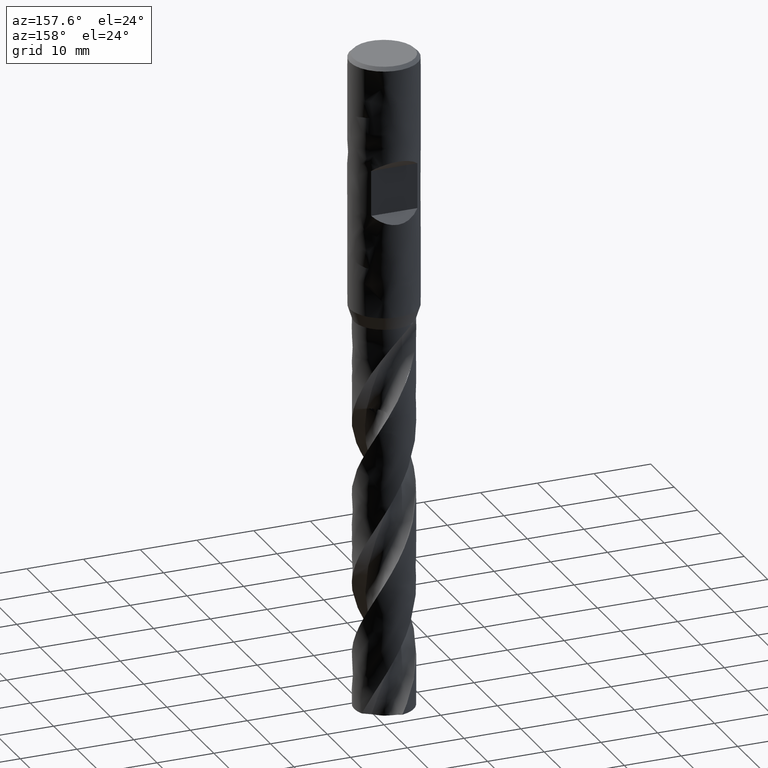
[diagram: clean part render]
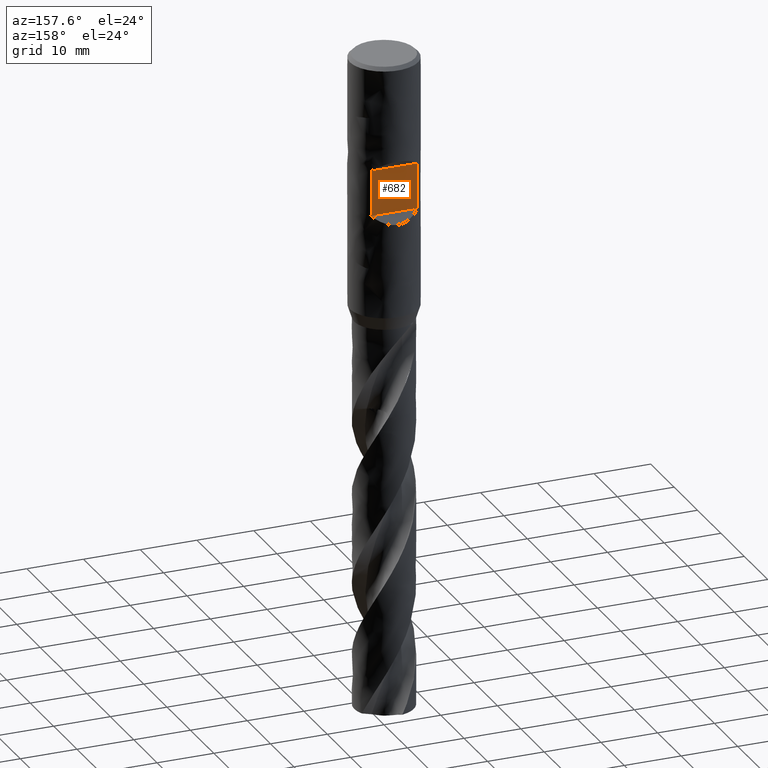
[diagram: same view with one face highlighted and labeled with its STEP entity id]
A machine part, auxiliary view. The second image highlights one B-rep face of the part: STEP entity #682.
In plain terms, the highlighted planar face has unit normal (0, 1, 0).
Its self-contained STEP definition (entity closure, byte-faithful):
#472 = VERTEX_POINT('', #473);
#473 = CARTESIAN_POINT('', (-4.07921561087423, 4.4, -18.5));
#474 = VERTEX_POINT('', #475);
#475 = CARTESIAN_POINT('', (4.07921561087423, 4.4, -18.5));
#563 = EDGE_CURVE('', #472, #564, #566, .T.);
#564 = VERTEX_POINT('', #565);
#565 = CARTESIAN_POINT('', (-4.07921561087423, 4.4, -26.5));
#566 = LINE('', #567, #568);
#567 = CARTESIAN_POINT('', (-4.07921561087423, 4.4, -18.5));
#568 = VECTOR('', #569, 8.);
#569 = DIRECTION('', (0., 0., -8.));
#572 = VERTEX_POINT('', #573);
#573 = CARTESIAN_POINT('', (4.07921561087423, 4.4, -26.5));
#658 = EDGE_CURVE('', #474, #572, #659, .T.);
#659 = LINE('', #660, #661);
#660 = CARTESIAN_POINT('', (4.07921561087423, 4.4, -18.5));
#661 = VECTOR('', #662, 8.);
#662 = DIRECTION('', (0., 8.88178419700125E-16, -8.));
#682 = ADVANCED_FACE('', (#683), #699, .T.);
#683 = FACE_OUTER_BOUND('', #684, .T.);
#684 = EDGE_LOOP('', (#685, #686, #692, #693));
#685 = ORIENTED_EDGE('', *, *, #658, .T.);
#686 = ORIENTED_EDGE('', *, *, #687, .T.);
#687 = EDGE_CURVE('', #572, #564, #688, .T.);
#688 = LINE('', #689, #690);
#689 = CARTESIAN_POINT('', (4.07921561087423, 4.4, -26.5));
#690 = VECTOR('', #691, 8.15843122174846);
#691 = DIRECTION('', (-8.15843122174846, 8.88178419700125E-16, 0.));
#692 = ORIENTED_EDGE('', *, *, #563, .F.);
#693 = ORIENTED_EDGE('', *, *, #694, .F.);
#694 = EDGE_CURVE('', #474, #472, #695, .T.);
#695 = LINE('', #696, #697);
#696 = CARTESIAN_POINT('', (4.07921561087423, 4.4, -18.5));
#697 = VECTOR('', #698, 8.15843122174846);
#698 = DIRECTION('', (-8.15843122174846, 8.88178419700125E-16, 0.));
#699 = PLANE('', #700);
#700 = AXIS2_PLACEMENT_3D('', #701, #702, #703);
#701 = CARTESIAN_POINT('', (6., 4.4, -26.5));
#702 = DIRECTION('', (0., 1., 1.11022302462516E-16));
#703 = DIRECTION('', (-1., 0., 0.));